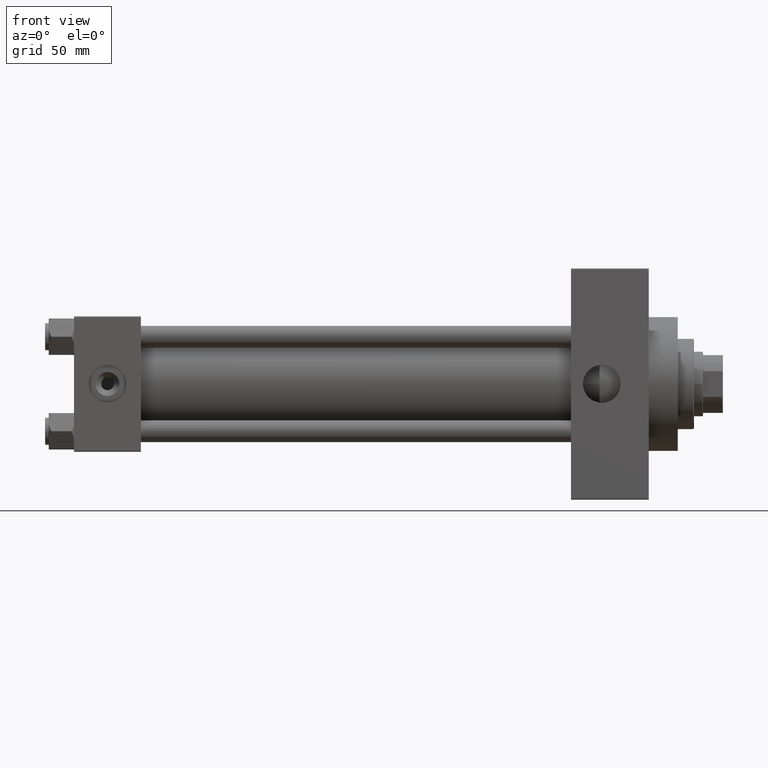
[diagram: clean part render]
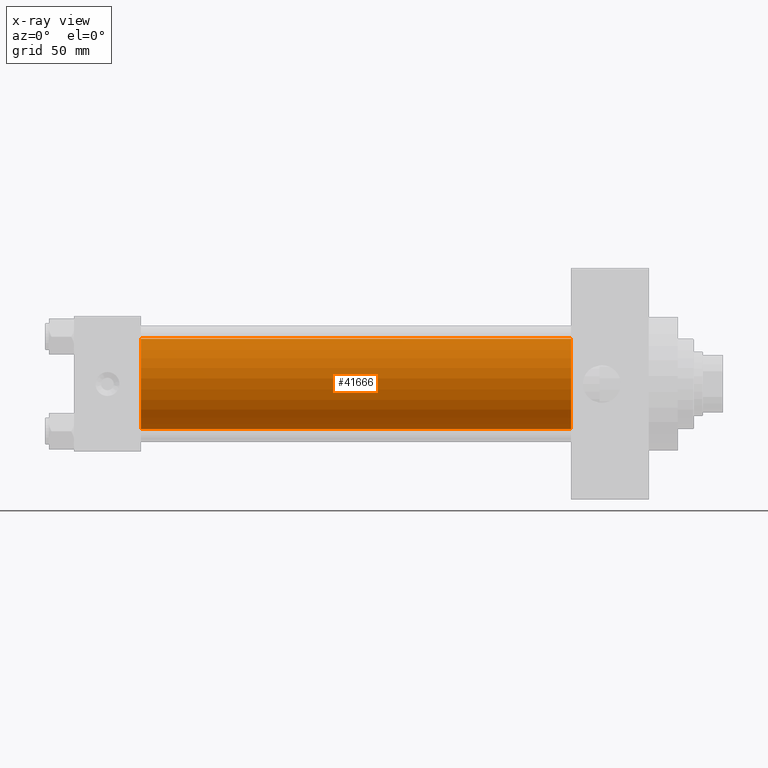
[diagram: x-ray — body ghosted, one internal face saturated and labeled with its STEP entity id]
A machine part, front view, then the same camera in x-ray: the body is ghosted and one INTERNAL B-rep face — a face not visible from any outside direction — is saturated and labeled: STEP entity #41666.
In plain terms, the highlighted cylindrical surface (partial cylindrical patch) has radius 25 mm, axis along (-1, -0, -0).
Its self-contained STEP definition (entity closure, byte-faithful):
#418 = EDGE_LOOP ( 'NONE', ( #40375, #14801, #43827, #13320 ) ) ;
#1905 = DIRECTION ( 'NONE',  ( -1.000000000000000000, -0.000000000000000000, -0.000000000000000000 ) ) ;
#3355 = DIRECTION ( 'NONE',  ( -1.000000000000000000, -0.000000000000000000, -0.000000000000000000 ) ) ;
#4445 = EDGE_CURVE ( 'NONE', #36997, #20161, #11230, .T. ) ;
#6187 = EDGE_CURVE ( 'NONE', #6879, #41102, #28801, .T. ) ;
#6284 = DIRECTION ( 'NONE',  ( -1.000000000000000000, -0.000000000000000000, -0.000000000000000000 ) ) ;
#6879 = VERTEX_POINT ( 'NONE', #43154 ) ;
#7230 = EDGE_CURVE ( 'NONE', #20161, #41102, #30027, .T. ) ;
#8128 = VECTOR ( 'NONE', #3355, 1000.000000000000000 ) ;
#9357 = CYLINDRICAL_SURFACE ( 'NONE', #14874, 25.00000000000000000 ) ;
#10276 = DIRECTION ( 'NONE',  ( 1.000000000000000000, 0.000000000000000000, 0.000000000000000000 ) ) ;
#11230 = CIRCLE ( 'NONE', #25606, 25.00000000000000000 ) ;
#13092 = FACE_OUTER_BOUND ( 'NONE', #418, .T. ) ;
#13320 = ORIENTED_EDGE ( 'NONE', *, *, #19860, .F. ) ;
#14801 = ORIENTED_EDGE ( 'NONE', *, *, #7230, .T. ) ;
#14874 = AXIS2_PLACEMENT_3D ( 'NONE', #46482, #6284, #24560 ) ;
#18715 = CARTESIAN_POINT ( 'NONE',  ( 274.9999999999999432, -2.602085213965210642E-15, 0.000000000000000000 ) ) ;
#19860 = EDGE_CURVE ( 'NONE', #36997, #6879, #20859, .T. ) ;
#20161 = VERTEX_POINT ( 'NONE', #35490 ) ;
#20859 = LINE ( 'NONE', #36037, #47469 ) ;
#24255 = CARTESIAN_POINT ( 'NONE',  ( 274.9999999999999432, -2.602085213965210642E-15, 25.00000000000000000 ) ) ;
#24560 = DIRECTION ( 'NONE',  ( 0.000000000000000000, 0.000000000000000000, 1.000000000000000000 ) ) ;
#25151 = CARTESIAN_POINT ( 'NONE',  ( 274.9999999999999432, 4.595317839031724996E-16, -25.00000000000000000 ) ) ;
#25562 = DIRECTION ( 'NONE',  ( 0.000000000000000000, 0.000000000000000000, -1.000000000000000000 ) ) ;
#25606 = AXIS2_PLACEMENT_3D ( 'NONE', #18715, #10276, #29443 ) ;
#28792 = DIRECTION ( 'NONE',  ( 1.000000000000000000, 0.000000000000000000, 0.000000000000000000 ) ) ;
#28801 = CIRCLE ( 'NONE', #47899, 25.00000000000000000 ) ;
#29443 = DIRECTION ( 'NONE',  ( 0.000000000000000000, 0.000000000000000000, -1.000000000000000000 ) ) ;
#29522 = CARTESIAN_POINT ( 'NONE',  ( 37.00000000000000000, -2.602085213965210642E-15, 0.000000000000000000 ) ) ;
#30027 = LINE ( 'NONE', #25151, #8128 ) ;
#33347 = CARTESIAN_POINT ( 'NONE',  ( 37.00000000000000000, 4.595317839031724996E-16, -25.00000000000000000 ) ) ;
#35490 = CARTESIAN_POINT ( 'NONE',  ( 274.9999999999999432, 4.595317839031724996E-16, -25.00000000000000000 ) ) ;
#36037 = CARTESIAN_POINT ( 'NONE',  ( 274.9999999999999432, -2.602085213965210642E-15, 25.00000000000000000 ) ) ;
#36997 = VERTEX_POINT ( 'NONE', #24255 ) ;
#40375 = ORIENTED_EDGE ( 'NONE', *, *, #4445, .T. ) ;
#41102 = VERTEX_POINT ( 'NONE', #33347 ) ;
#41666 = ADVANCED_FACE ( 'NONE', ( #13092 ), #9357, .F. ) ;
#43154 = CARTESIAN_POINT ( 'NONE',  ( 37.00000000000000000, -2.602085213965210642E-15, 25.00000000000000000 ) ) ;
#43827 = ORIENTED_EDGE ( 'NONE', *, *, #6187, .F. ) ;
#46482 = CARTESIAN_POINT ( 'NONE',  ( 274.9999999999999432, -2.602085213965210642E-15, 0.000000000000000000 ) ) ;
#47469 = VECTOR ( 'NONE', #1905, 1000.000000000000000 ) ;
#47899 = AXIS2_PLACEMENT_3D ( 'NONE', #29522, #28792, #25562 ) ;